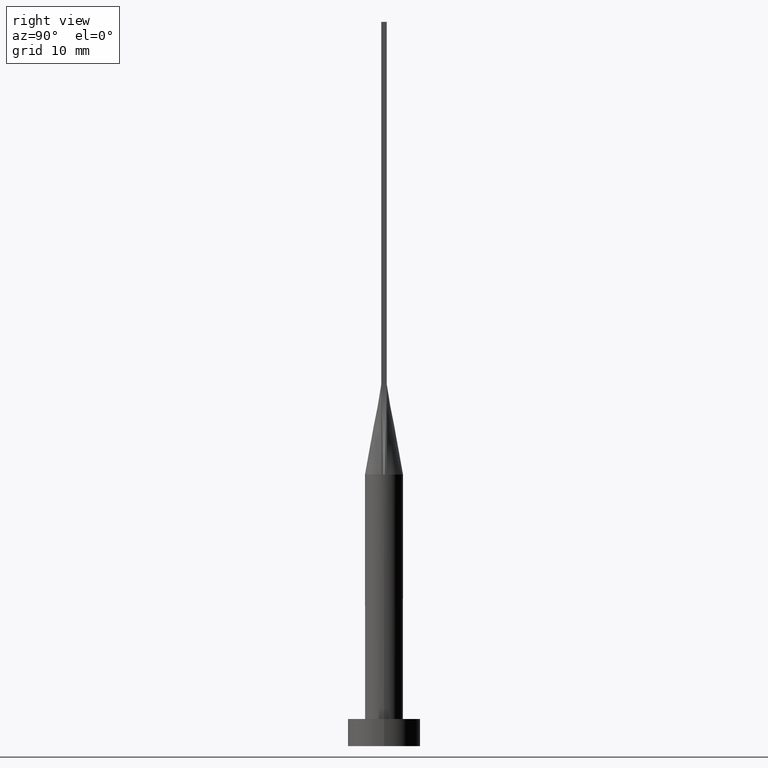
[diagram: clean part render]
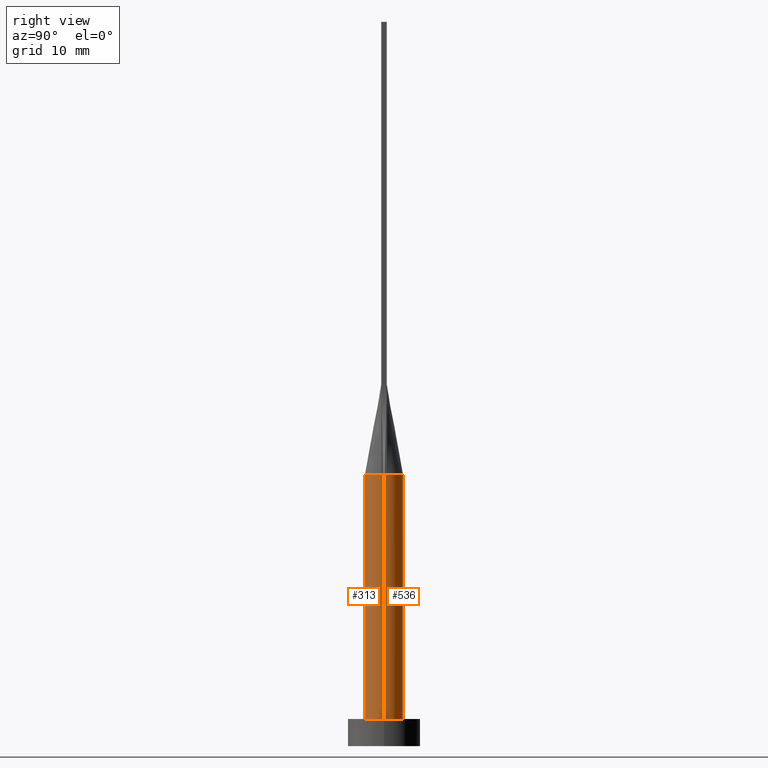
[diagram: same view with one multi-face feature highlighted, each face labeled with its STEP entity id]
A machine part, right view. The highlighted faces form ONE feature: a constant-radius fillet chain: 2 tangent blend faces with common blend radius 2.1 mm. The faces share edges in the B-rep.
Their STEP definitions:
[1] entity #536 (Cylinder):
#4 = DIRECTION ( 'NONE',  ( 1.000000000000000000, 0.000000000000000000, 0.000000000000000000 ) ) ;
#5 = EDGE_CURVE ( 'NONE', #261, #35, #446, .T. ) ;
#18 = DIRECTION ( 'NONE',  ( -0.000000000000000000, -0.000000000000000000, -1.000000000000000000 ) ) ;
#21 = DIRECTION ( 'NONE',  ( 0.000000000000000000, 0.000000000000000000, 1.000000000000000000 ) ) ;
#35 = VERTEX_POINT ( 'NONE', #577 ) ;
#36 = ORIENTED_EDGE ( 'NONE', *, *, #335, .F. ) ;
#38 = VECTOR ( 'NONE', #310, 1000.000000000000000 ) ;
#50 = CIRCLE ( 'NONE', #348, 2.100000000000000089 ) ;
#53 = B_SPLINE_CURVE_WITH_KNOTS ( 'NONE', 3,
 ( #273, #263, #312, #452, #493, #54, #175, #183, #544, #139, #93, #318, #86, #397, #131, #355, #307, #444 ),
 .UNSPECIFIED., .F., .F.,
 ( 4, 2, 2, 2, 2, 2, 2, 2, 4 ),
 ( 0.000000000000000000, 0.1249999999999999722, 0.2500000000000000000, 0.3750000000000000000, 0.5000000000000000000, 0.6250000000000000000, 0.7500000000000000000, 0.8750000000000000000, 1.000000000000000000 ),
 .UNSPECIFIED. ) ;
#54 = CARTESIAN_POINT ( 'NONE',  ( 1.342614810400549086, 1.634425746458369799, 30.00000000000001066 ) ) ;
#65 = VERTEX_POINT ( 'NONE', #270 ) ;
#67 = DIRECTION ( 'NONE',  ( 0.000000000000000000, 0.000000000000000000, 1.000000000000000000 ) ) ;
#69 = CYLINDRICAL_SURFACE ( 'NONE', #572, 2.100000000000000089 ) ;
#86 = CARTESIAN_POINT ( 'NONE',  ( -1.342614810400549308, 1.634425746458370021, 30.00000000000000711 ) ) ;
#93 = CARTESIAN_POINT ( 'NONE',  ( -0.5970064165420507774, 2.033566071616263127, 30.00000000000000000 ) ) ;
#114 = CIRCLE ( 'NONE', #423, 2.100000000000000089 ) ;
#116 = VECTOR ( 'NONE', #548, 1000.000000000000000 ) ;
#129 = EDGE_CURVE ( 'NONE', #253, #345, #53, .T. ) ;
#131 = CARTESIAN_POINT ( 'NONE',  ( -1.819451111325472326, 1.069832718648841885, 30.00000000000000711 ) ) ;
#132 = CARTESIAN_POINT ( 'NONE',  ( -2.100000000000000089, 0.000000000000000000, 30.00000000000000000 ) ) ;
#135 = EDGE_LOOP ( 'NONE', ( #36, #385, #370, #518, #521, #254 ) ) ;
#139 = CARTESIAN_POINT ( 'NONE',  ( -0.2990728642939458615, 2.100000000000000089, 30.00000000000001066 ) ) ;
#153 = CARTESIAN_POINT ( 'NONE',  ( 2.100000000000000089, 2.571758278209441957E-16, 3.000000000000000000 ) ) ;
#157 = CARTESIAN_POINT ( 'NONE',  ( 2.100000000000000089, 2.571758278209441957E-16, 30.00000000000000000 ) ) ;
#175 = CARTESIAN_POINT ( 'NONE',  ( 1.119115561862284558, 1.799829988698611105, 30.00000000000000355 ) ) ;
#183 = CARTESIAN_POINT ( 'NONE',  ( 0.5970064165420508884, 2.033566071616262683, 30.00000000000001066 ) ) ;
#186 = EDGE_CURVE ( 'NONE', #65, #205, #359, .T. ) ;
#195 = CARTESIAN_POINT ( 'NONE',  ( 0.000000000000000000, 0.000000000000000000, 3.000000000000000000 ) ) ;
#199 = FACE_OUTER_BOUND ( 'NONE', #135, .T. ) ;
#200 = DIRECTION ( 'NONE',  ( 1.000000000000000000, 0.000000000000000000, 0.000000000000000000 ) ) ;
#205 = VERTEX_POINT ( 'NONE', #153 ) ;
#243 = CARTESIAN_POINT ( 'NONE',  ( 0.000000000000000000, 0.000000000000000000, 30.00000000000000000 ) ) ;
#246 = CARTESIAN_POINT ( 'NONE',  ( 2.074471112824316510, 0.3275477247839024275, 30.00000000000000000 ) ) ;
#253 = VERTEX_POINT ( 'NONE', #246 ) ;
#254 = ORIENTED_EDGE ( 'NONE', *, *, #129, .F. ) ;
#261 = VERTEX_POINT ( 'NONE', #372 ) ;
#263 = CARTESIAN_POINT ( 'NONE',  ( 2.047342767731584967, 0.4982646475365660188, 30.00000000000000355 ) ) ;
#270 = CARTESIAN_POINT ( 'NONE',  ( 2.099921383865792635, 5.174786140116233847E-16, 30.00000000000000000 ) ) ;
#272 = AXIS2_PLACEMENT_3D ( 'NONE', #468, #21, #200 ) ;
#273 = CARTESIAN_POINT ( 'NONE',  ( 2.074471112824316510, 0.3275477247839024275, 30.00000000000000000 ) ) ;
#275 = DIRECTION ( 'NONE',  ( 1.000000000000000000, 0.000000000000000000, 0.000000000000000000 ) ) ;
#307 = CARTESIAN_POINT ( 'NONE',  ( -2.047342767731585855, 0.4982646475365663519, 30.00000000000000355 ) ) ;
#310 = DIRECTION ( 'NONE',  ( -0.000000000000000000, -0.000000000000000000, -1.000000000000000000 ) ) ;
#312 = CARTESIAN_POINT ( 'NONE',  ( 1.996565546919327527, 0.6845950695482651005, 30.00000000000000355 ) ) ;
#318 = CARTESIAN_POINT ( 'NONE',  ( -1.119115561862284558, 1.799829988698611327, 30.00000000000001066 ) ) ;
#335 = EDGE_CURVE ( 'NONE', #65, #253, #527, .T. ) ;
#345 = VERTEX_POINT ( 'NONE', #403 ) ;
#348 = AXIS2_PLACEMENT_3D ( 'NONE', #368, #546, #4 ) ;
#355 = CARTESIAN_POINT ( 'NONE',  ( -1.996565546919327527, 0.6845950695482648785, 30.00000000000001066 ) ) ;
#359 = LINE ( 'NONE', #157, #116 ) ;
#368 = CARTESIAN_POINT ( 'NONE',  ( 0.000000000000000000, 0.000000000000000000, 30.00000000000000000 ) ) ;
#370 = ORIENTED_EDGE ( 'NONE', *, *, #371, .T. ) ;
#371 = EDGE_CURVE ( 'NONE', #205, #35, #114, .T. ) ;
#372 = CARTESIAN_POINT ( 'NONE',  ( -2.099921383865792635, -5.254633567926592411E-16, 30.00000000000000000 ) ) ;
#380 = DIRECTION ( 'NONE',  ( -1.000000000000000000, 0.000000000000000000, 0.000000000000000000 ) ) ;
#385 = ORIENTED_EDGE ( 'NONE', *, *, #186, .T. ) ;
#397 = CARTESIAN_POINT ( 'NONE',  ( -1.692271541701912296, 1.268928319070362631, 30.00000000000001066 ) ) ;
#403 = CARTESIAN_POINT ( 'NONE',  ( -2.074476228699557279, 0.3275484103472254827, 30.00000000000000000 ) ) ;
#412 = EDGE_CURVE ( 'NONE', #345, #261, #50, .T. ) ;
#423 = AXIS2_PLACEMENT_3D ( 'NONE', #195, #67, #275 ) ;
#444 = CARTESIAN_POINT ( 'NONE',  ( -2.074476228699557279, 0.3275484103472254827, 30.00000000000000000 ) ) ;
#446 = LINE ( 'NONE', #132, #38 ) ;
#452 = CARTESIAN_POINT ( 'NONE',  ( 1.819451111325471215, 1.069832718648841885, 29.99999999999999645 ) ) ;
#468 = CARTESIAN_POINT ( 'NONE',  ( 0.000000000000000000, 0.000000000000000000, 30.00000000000000000 ) ) ;
#493 = CARTESIAN_POINT ( 'NONE',  ( 1.692271541701912296, 1.268928319070362187, 30.00000000000000000 ) ) ;
#518 = ORIENTED_EDGE ( 'NONE', *, *, #5, .F. ) ;
#521 = ORIENTED_EDGE ( 'NONE', *, *, #412, .F. ) ;
#527 = CIRCLE ( 'NONE', #272, 2.100000000000000089 ) ;
#536 = ADVANCED_FACE ( 'NONE', ( #199 ), #69, .T. ) ;
#544 = CARTESIAN_POINT ( 'NONE',  ( 0.2990728642939458615, 2.100000000000000089, 30.00000000000000711 ) ) ;
#546 = DIRECTION ( 'NONE',  ( 0.000000000000000000, 0.000000000000000000, 1.000000000000000000 ) ) ;
#548 = DIRECTION ( 'NONE',  ( -0.000000000000000000, -0.000000000000000000, -1.000000000000000000 ) ) ;
#572 = AXIS2_PLACEMENT_3D ( 'NONE', #243, #18, #380 ) ;
#577 = CARTESIAN_POINT ( 'NONE',  ( -2.100000000000000089, 0.000000000000000000, 3.000000000000000000 ) ) ;
[2] entity #313 (Cylinder):
#5 = EDGE_CURVE ( 'NONE', #261, #35, #446, .T. ) ;
#35 = VERTEX_POINT ( 'NONE', #577 ) ;
#38 = VECTOR ( 'NONE', #310, 1000.000000000000000 ) ;
#41 = EDGE_CURVE ( 'NONE', #389, #65, #104, .T. ) ;
#44 = DIRECTION ( 'NONE',  ( 0.000000000000000000, 0.000000000000000000, 1.000000000000000000 ) ) ;
#47 = DIRECTION ( 'NONE',  ( 1.000000000000000000, -7.993605777301127091E-15, 0.000000000000000000 ) ) ;
#65 = VERTEX_POINT ( 'NONE', #270 ) ;
#71 = CIRCLE ( 'NONE', #479, 2.100000000000000089 ) ;
#78 = ORIENTED_EDGE ( 'NONE', *, *, #101, .T. ) ;
#94 = DIRECTION ( 'NONE',  ( 1.000000000000000000, 0.000000000000000000, 0.000000000000000000 ) ) ;
#99 = DIRECTION ( 'NONE',  ( 1.000000000000000000, 0.000000000000000000, 0.000000000000000000 ) ) ;
#101 = EDGE_CURVE ( 'NONE', #35, #205, #346, .T. ) ;
#104 = CIRCLE ( 'NONE', #432, 2.100000000000000089 ) ;
#116 = VECTOR ( 'NONE', #548, 1000.000000000000000 ) ;
#124 = CIRCLE ( 'NONE', #140, 2.100000000000000089 ) ;
#132 = CARTESIAN_POINT ( 'NONE',  ( -2.100000000000000089, 0.000000000000000000, 30.00000000000000000 ) ) ;
#140 = AXIS2_PLACEMENT_3D ( 'NONE', #321, #515, #99 ) ;
#147 = DIRECTION ( 'NONE',  ( 1.000000000000000000, 0.000000000000000000, 0.000000000000000000 ) ) ;
#153 = CARTESIAN_POINT ( 'NONE',  ( 2.100000000000000089, 2.571758278209441957E-16, 3.000000000000000000 ) ) ;
#155 = DIRECTION ( 'NONE',  ( -0.000000000000000000, -0.000000000000000000, -1.000000000000000000 ) ) ;
#157 = CARTESIAN_POINT ( 'NONE',  ( 2.100000000000000089, 2.571758278209441957E-16, 30.00000000000000000 ) ) ;
#159 = ORIENTED_EDGE ( 'NONE', *, *, #186, .F. ) ;
#182 = CARTESIAN_POINT ( 'NONE',  ( 2.074492141291045755, -0.3275508996892426139, 30.00000000000000000 ) ) ;
#186 = EDGE_CURVE ( 'NONE', #65, #205, #359, .T. ) ;
#191 = CYLINDRICAL_SURFACE ( 'NONE', #196, 2.100000000000000089 ) ;
#196 = AXIS2_PLACEMENT_3D ( 'NONE', #379, #155, #471 ) ;
#205 = VERTEX_POINT ( 'NONE', #153 ) ;
#207 = ORIENTED_EDGE ( 'NONE', *, *, #456, .F. ) ;
#210 = CARTESIAN_POINT ( 'NONE',  ( -2.074486960997361962, -0.3275502116714910095, 30.00000000000000000 ) ) ;
#212 = ORIENTED_EDGE ( 'NONE', *, *, #5, .T. ) ;
#252 = EDGE_CURVE ( 'NONE', #261, #571, #124, .T. ) ;
#261 = VERTEX_POINT ( 'NONE', #372 ) ;
#270 = CARTESIAN_POINT ( 'NONE',  ( 2.099921383865792635, 5.174786140116233847E-16, 30.00000000000000000 ) ) ;
#300 = AXIS2_PLACEMENT_3D ( 'NONE', #540, #580, #94 ) ;
#310 = DIRECTION ( 'NONE',  ( -0.000000000000000000, -0.000000000000000000, -1.000000000000000000 ) ) ;
#313 = ADVANCED_FACE ( 'NONE', ( #424 ), #191, .T. ) ;
#321 = CARTESIAN_POINT ( 'NONE',  ( 0.000000000000000000, 0.000000000000000000, 30.00000000000000000 ) ) ;
#346 = CIRCLE ( 'NONE', #300, 2.100000000000000089 ) ;
#359 = LINE ( 'NONE', #157, #116 ) ;
#363 = ORIENTED_EDGE ( 'NONE', *, *, #41, .F. ) ;
#372 = CARTESIAN_POINT ( 'NONE',  ( -2.099921383865792635, -5.254633567926592411E-16, 30.00000000000000000 ) ) ;
#379 = CARTESIAN_POINT ( 'NONE',  ( 0.000000000000000000, 0.000000000000000000, 30.00000000000000000 ) ) ;
#389 = VERTEX_POINT ( 'NONE', #182 ) ;
#398 = CARTESIAN_POINT ( 'NONE',  ( 0.000000000000000000, 0.000000000000000000, 30.00000000000000000 ) ) ;
#424 = FACE_OUTER_BOUND ( 'NONE', #523, .T. ) ;
#432 = AXIS2_PLACEMENT_3D ( 'NONE', #398, #44, #47 ) ;
#446 = LINE ( 'NONE', #132, #38 ) ;
#456 = EDGE_CURVE ( 'NONE', #571, #389, #71, .T. ) ;
#463 = CARTESIAN_POINT ( 'NONE',  ( 0.000000000000000000, 0.000000000000000000, 30.00000000000000000 ) ) ;
#471 = DIRECTION ( 'NONE',  ( -1.000000000000000000, 0.000000000000000000, 0.000000000000000000 ) ) ;
#479 = AXIS2_PLACEMENT_3D ( 'NONE', #463, #542, #147 ) ;
#488 = ORIENTED_EDGE ( 'NONE', *, *, #252, .F. ) ;
#515 = DIRECTION ( 'NONE',  ( 0.000000000000000000, 0.000000000000000000, 1.000000000000000000 ) ) ;
#523 = EDGE_LOOP ( 'NONE', ( #159, #363, #207, #488, #212, #78 ) ) ;
#540 = CARTESIAN_POINT ( 'NONE',  ( 0.000000000000000000, 0.000000000000000000, 3.000000000000000000 ) ) ;
#542 = DIRECTION ( 'NONE',  ( 0.000000000000000000, 0.000000000000000000, 1.000000000000000000 ) ) ;
#548 = DIRECTION ( 'NONE',  ( -0.000000000000000000, -0.000000000000000000, -1.000000000000000000 ) ) ;
#571 = VERTEX_POINT ( 'NONE', #210 ) ;
#577 = CARTESIAN_POINT ( 'NONE',  ( -2.100000000000000089, 0.000000000000000000, 3.000000000000000000 ) ) ;
#580 = DIRECTION ( 'NONE',  ( 0.000000000000000000, 0.000000000000000000, 1.000000000000000000 ) ) ;